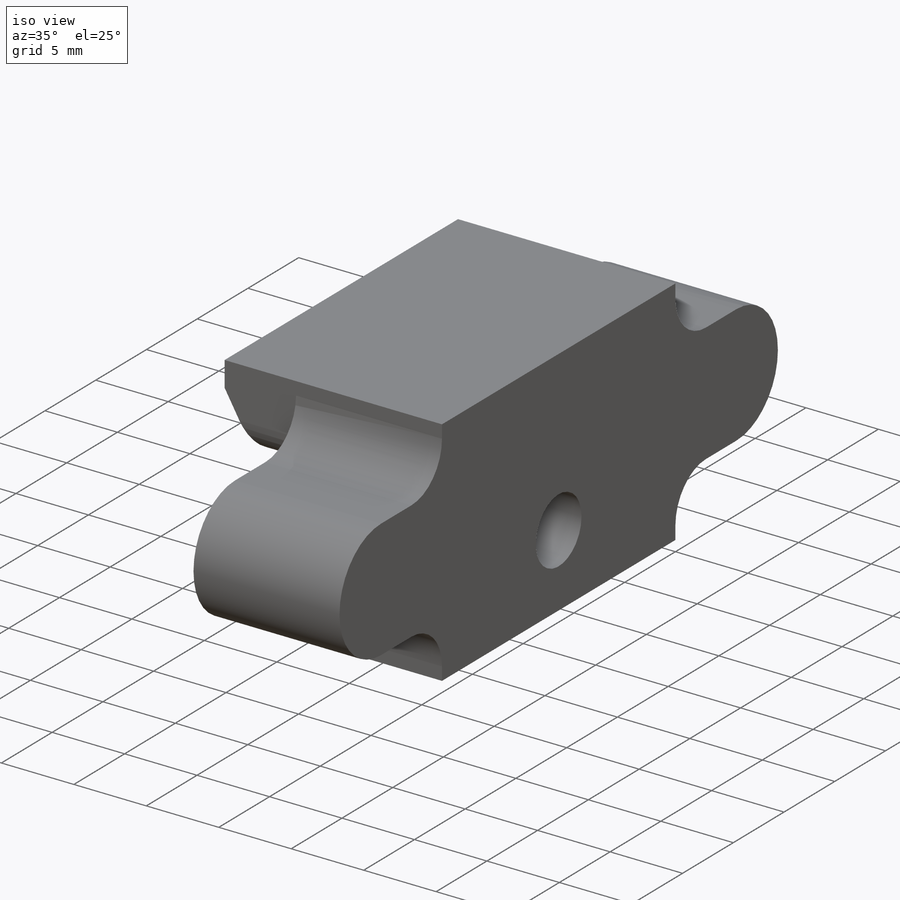
[diagram: iso view]
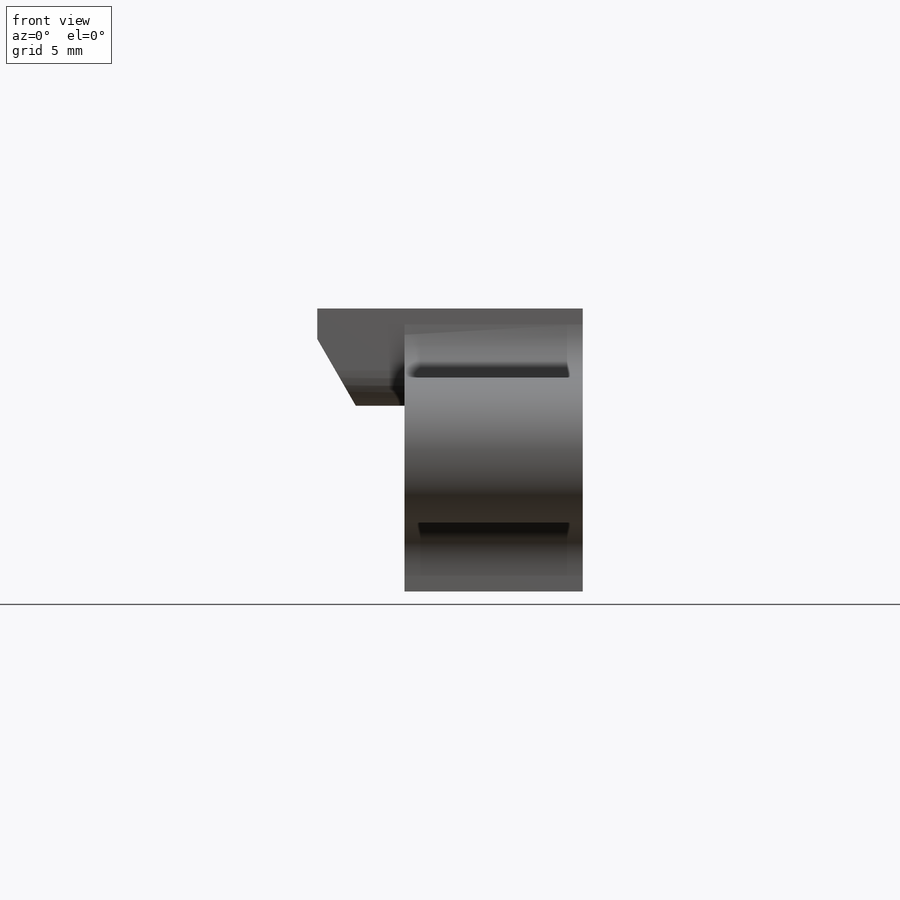
[diagram: front view]
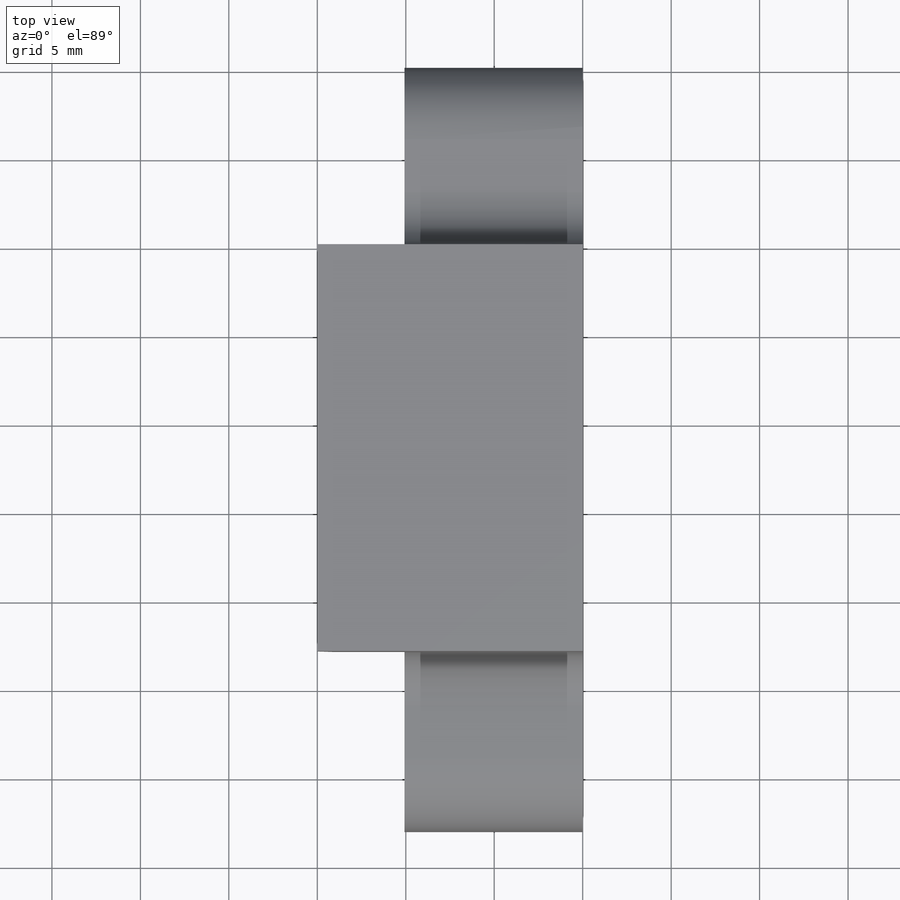
[diagram: top view]
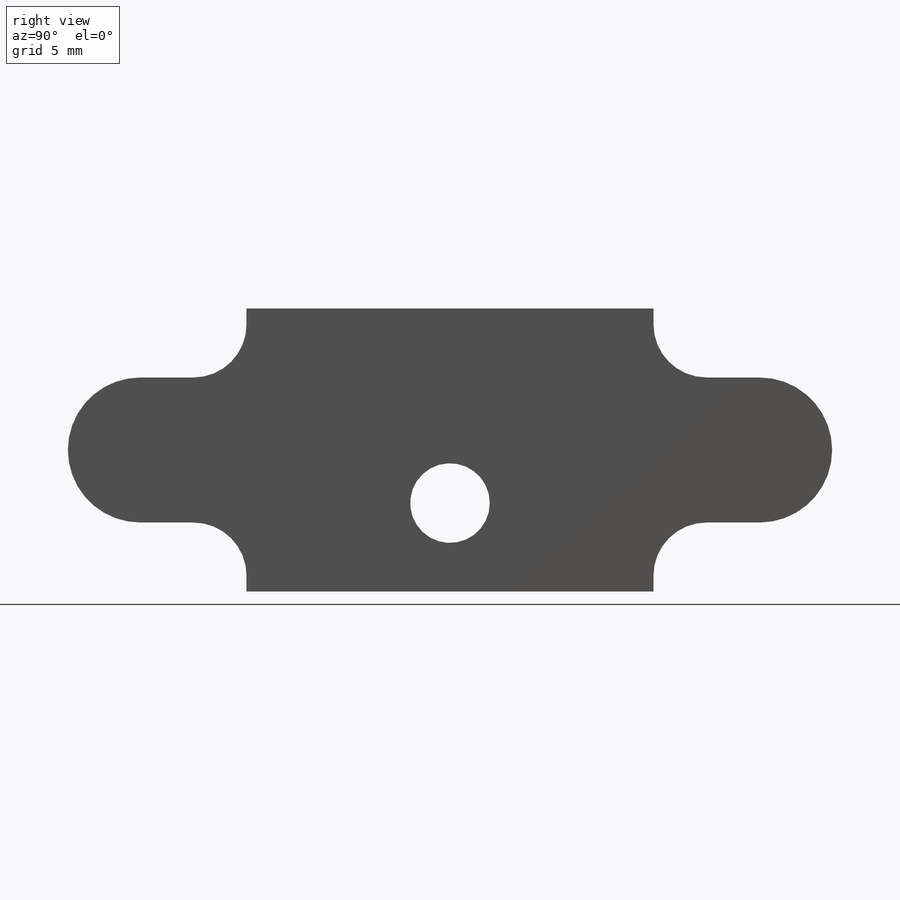
[diagram: right view]
SOLIDWORKS PART (.sldprt)
format: sldprt  version: not decoded by parser v0  size: 331,264 bytes
history: native  units: mm
features: sketch x6, plane x3, extrude x2, fillet x2, material x1, cut_extrude x1, hole x1, chamfer x1 (+8 scaffold rows collapsed)
feature tree (25):
  scaffold x8  (default folders/planes/origin — collapsed)
  material  "Сплав 2024"
  plane  "Спереди"
  plane  "Сверху"
  plane  "Справа"
  sketch  "Эскиз1"  dims[c1.D1=13.29mm c1.D2=16.0mm c1.D3=16.0mm c1.D4=~5.410054mm c2.D4=60.0deg c2.D5=2.0mm c2.D1=2.0mm c3.D5=1.5mm c3.D6=1.0mm c3.D7=10.79mm c3.D2=5.5mm c4.D6=16.0mm]
  extrude  "Бобышка-Вытянуть1"  Depth=23mm
  sketch  "Эскиз2"  dims[c1.D4=5.0mm c1.D1=5.0mm c1.D2=4.0mm c1.D3=4.0mm c2.D4=14.0mm c2.D2=7.5mm]
  cut_extrude  "Вырез-Вытянуть1"  Depth=4mm
  hole  "Отверстие с зазором M41"  [1 undecoded]
  sketch  "Эскиз4"
  sketch  "Эскиз3"  dims[hole-wizard template sketch: 60 standard entries collapsed; hole parameters kept: c18.Глубина сквозного отверстия=16.0mm]
  chamfer  "Фаска1"  Distance=1mm Angle=90deg
  sketch  "Эскиз7"  dims[D2=4.1mm D1=6.0mm]
  extrude  "Бобышка-Вытянуть2"  [1 undecoded]
  fillet  "Скругление1"  Radius=3mm
  fillet  "Скругление2"  Radius=2mm
  sketch  "Эскиз11"
decode coverage: 9 of 13 modeling features carry decoded parameters
note: ~ marks probable driven/reference dimensions
note: 2 parameter values undecoded
note: suppression state not decoded; provenance and decode notes live in map.json
